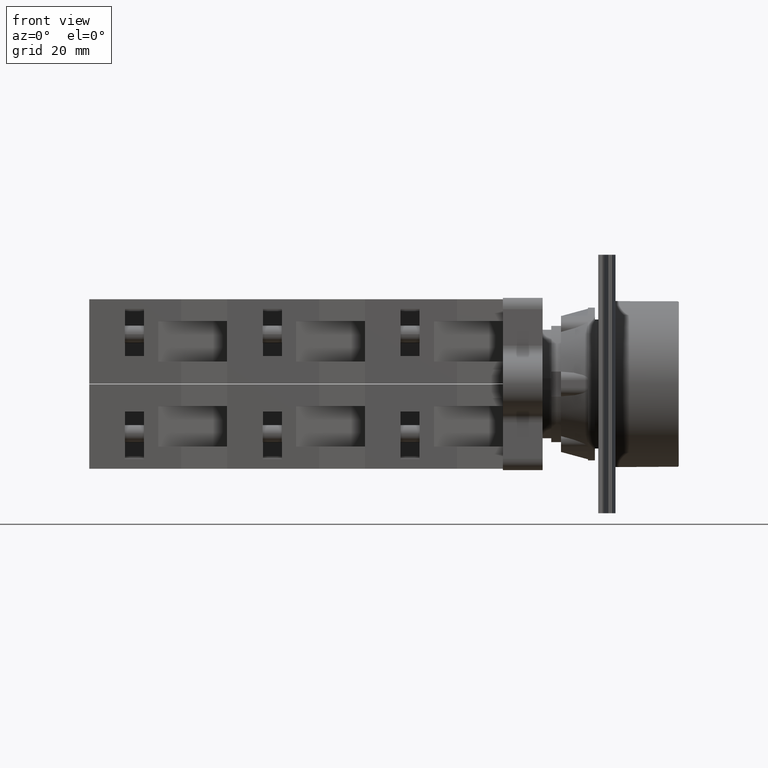
[diagram: clean part render]
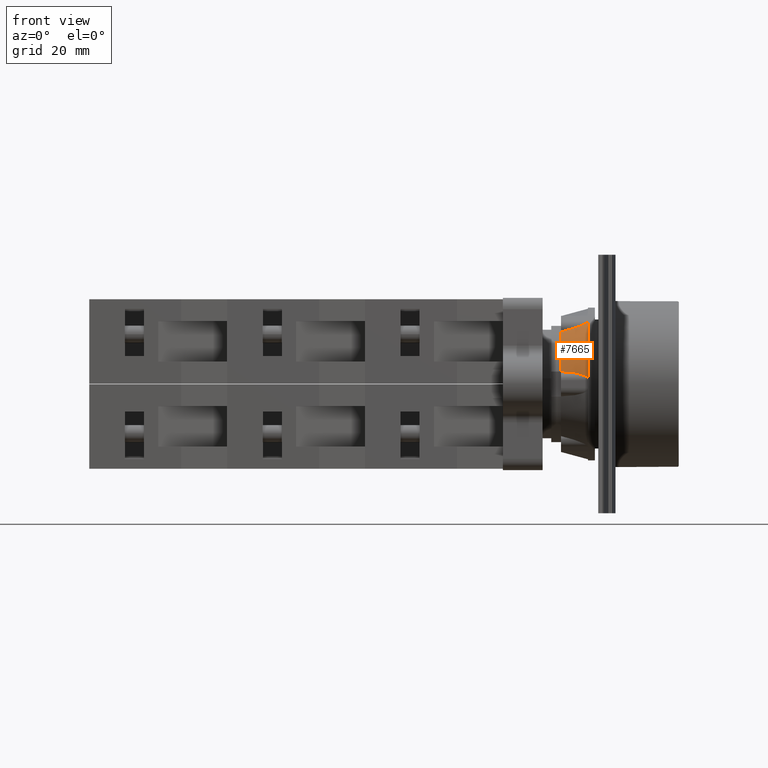
[diagram: same view with one face highlighted and labeled with its STEP entity id]
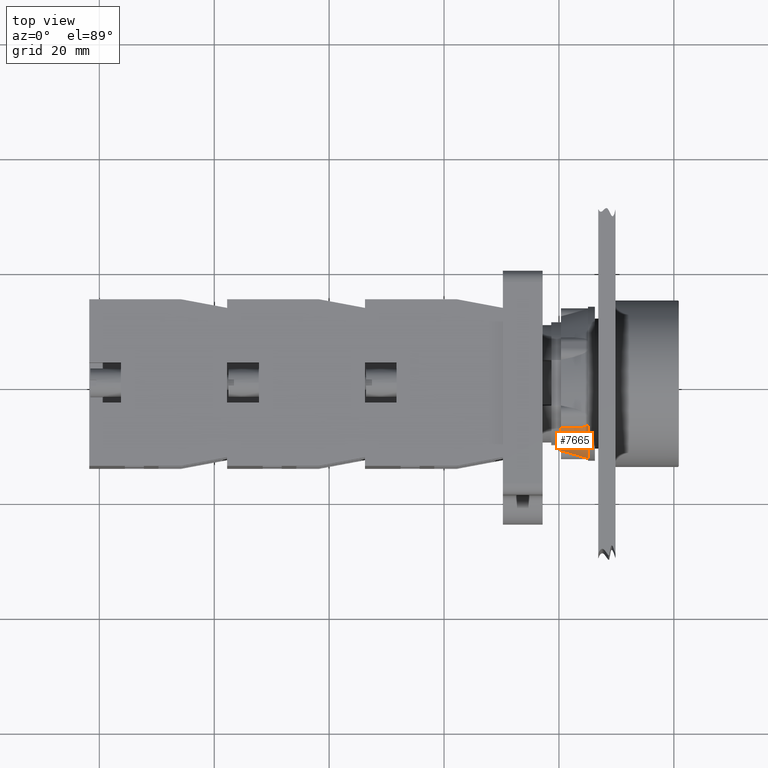
[diagram: same view with one face highlighted and labeled with its STEP entity id]
A machine part, front view. The second image highlights one B-rep face of the part: STEP entity #7665.
A second angle (top view) of the same face is appended — the face is thin or edge-on in the first view.
In plain terms, the highlighted conical surface has half-angle 14.357 deg.
Its self-contained STEP definition (entity closure, byte-faithful):
#7009=CARTESIAN_POINT('',(-5.624441413677323,4.151785486355079,-10.825933760222373));
#7010=VERTEX_POINT('',#7009);
#7019=CARTESIAN_POINT('',(-0.924441413677322,3.821999110955993,-9.063384223984858));
#7020=VERTEX_POINT('',#7019);
#7028=CARTESIAN_POINT('',(-5.624441413677304,4.151785486355092,-10.825933760222375));
#7029=CARTESIAN_POINT('',(-5.573448501602552,4.086181649596806,-10.765405103551005));
#7030=CARTESIAN_POINT('',(-5.499858718227284,4.032803702213161,-10.705118900650326));
#7031=CARTESIAN_POINT('',(-5.426497655225457,3.991625643807002,-10.652960588482738));
#7032=CARTESIAN_POINT('',(-5.353885066415269,3.950867709002079,-10.601334427144751));
#7033=CARTESIAN_POINT('',(-5.274396952156992,3.917355479284580,-10.552142641988494));
#7034=CARTESIAN_POINT('',(-5.190253476801342,3.888166355455448,-10.504260849396072));
#7035=CARTESIAN_POINT('',(-4.885104151437903,3.782310953039969,-10.330615814590782));
#7036=CARTESIAN_POINT('',(-4.520065672206376,3.731381499813819,-10.173548079575625));
#7037=CARTESIAN_POINT('',(-4.173129532818684,3.702346445381459,-10.038271890885770));
#7038=CARTESIAN_POINT('',(-3.959007105868669,3.684426558647679,-9.954781984409204));
#7039=CARTESIAN_POINT('',(-3.757275896403060,3.675523921820981,-9.881777173969949));
#7040=CARTESIAN_POINT('',(-3.544573123045886,3.671365611261395,-9.808671349461337));
#7041=CARTESIAN_POINT('',(-2.723368144514656,3.655311164580172,-9.526423656596082));
#7042=CARTESIAN_POINT('',(-1.810992263511406,3.718953839836752,-9.273648736820190));
#7043=CARTESIAN_POINT('',(-0.924441413677322,3.821999110955995,-9.063384223984857));
#7044=B_SPLINE_CURVE_WITH_KNOTS('',3,(#7028,#7029,#7030,#7031,#7032,#7033,#7034,#7035,#7036,#7037,#7038,#7039,#7040,#7041,#7042,#7043),.UNSPECIFIED.,.F.,.U.,(4,3,3,3,3,4),(0.680390622135762,0.710017202497330,0.739341514463651,0.845687181497822,0.911321716894347,1.164724182600336),.UNSPECIFIED.);
#7045=EDGE_CURVE('',#7010,#7020,#7044,.T.);
#7095=CARTESIAN_POINT('',(-5.624441413677324,-1.532961572689648,-0.979663025779158));
#7096=VERTEX_POINT('',#7095);
#7104=CARTESIAN_POINT('',(-0.924441413677322,-0.171442086579017,-2.146541172815514));
#7105=VERTEX_POINT('',#7104);
#7106=CARTESIAN_POINT('',(-0.924441413677323,-0.171442086579016,-2.146541172815515));
#7107=CARTESIAN_POINT('',(-1.771683228070780,-0.394700717797439,-2.131353398165724));
#7108=CARTESIAN_POINT('',(-2.642508015099927,-0.633553153501011,-2.065432100229145));
#7109=CARTESIAN_POINT('',(-3.434810393553473,-0.860665938432876,-1.924469040424967));
#7110=CARTESIAN_POINT('',(-3.583648307694653,-0.903330196553659,-1.897988433572362));
#7111=CARTESIAN_POINT('',(-3.729719096947503,-0.945567828981231,-1.868814795358329));
#7112=CARTESIAN_POINT('',(-3.872317070512894,-0.987176754190257,-1.836641738132965));
#7113=CARTESIAN_POINT('',(-4.018377826273079,-1.029796090990385,-1.803687405501461));
#7114=CARTESIAN_POINT('',(-4.169407172229925,-1.074266013153906,-1.765718001898758));
#7115=CARTESIAN_POINT('',(-4.322920163511276,-1.120024585926743,-1.720833048705122));
#7116=CARTESIAN_POINT('',(-4.570134522573469,-1.193713308589344,-1.648551186156012));
#7117=CARTESIAN_POINT('',(-4.820924727797369,-1.269896953560020,-1.559616903047123));
#7118=CARTESIAN_POINT('',(-5.047877207843880,-1.341133928526617,-1.445796791348753));
#7119=CARTESIAN_POINT('',(-5.181444270855364,-1.383058623608870,-1.378810882985580));
#7120=CARTESIAN_POINT('',(-5.307176962552298,-1.423368431590584,-1.303462773989718));
#7121=CARTESIAN_POINT('',(-5.417192105388295,-1.460128673531568,-1.212609629200058));
#7122=CARTESIAN_POINT('',(-5.488457681084750,-1.483941211852502,-1.153756806757964));
#7123=CARTESIAN_POINT('',(-5.559948776567516,-1.508593164126053,-1.081967385656501));
#7124=CARTESIAN_POINT('',(-5.612343651441997,-1.528354830300154,-0.999483645020678));
#7125=CARTESIAN_POINT('',(-5.616499890349676,-1.529922430299775,-0.992940597959248));
#7126=CARTESIAN_POINT('',(-5.620535544533318,-1.531458949390357,-0.986332949957415));
#7127=CARTESIAN_POINT('',(-5.624441413677318,-1.532961572689640,-0.979663025779153));
#7128=B_SPLINE_CURVE_WITH_KNOTS('',3,(#7106,#7107,#7108,#7109,#7110,#7111,#7112,#7113,#7114,#7115,#7116,#7117,#7118,#7119,#7120,#7121,#7122,#7123,#7124,#7125,#7126,#7127),.UNSPECIFIED.,.F.,.U.,(4,3,3,3,3,3,3,4),(0.144484446797569,0.386651227029856,0.432143452503685,0.478740389807798,0.553779198534971,0.597941365397016,0.626548720387395,0.628818007262144),.UNSPECIFIED.);
#7129=EDGE_CURVE('',#7105,#7096,#7128,.T.);
#7491=CARTESIAN_POINT('',(-5.624441413677320,11.533358680345970,0.0));
#7492=DIRECTION('',(1.0,0.0,0.0));
#7493=DIRECTION('',(0.0,1.0,0.0));
#7494=AXIS2_PLACEMENT_3D('',#7491,#7492,#7493);
#7495=CIRCLE('',#7494,13.102994489770934);
#7496=EDGE_CURVE('',#7096,#7010,#7495,.T.);
#7648=CARTESIAN_POINT('',(-3.274441413677319,11.533358680345970,0.0));
#7649=DIRECTION('',(-1.0,0.0,0.0));
#7650=DIRECTION('',(0.0,1.0,0.0));
#7651=AXIS2_PLACEMENT_3D('',#7648,#7649,#7650);
#7652=CONICAL_SURFACE('',#7651,12.501497244885464,14.356985316744316);
#7653=ORIENTED_EDGE('',*,*,#7045,.T.);
#7654=CARTESIAN_POINT('',(-0.924441413677319,11.533358680345970,0.0));
#7655=DIRECTION('',(1.0,0.0,0.0));
#7656=DIRECTION('',(0.0,1.0,0.0));
#7657=AXIS2_PLACEMENT_3D('',#7654,#7655,#7656);
#7658=CIRCLE('',#7657,11.899999999999999);
#7659=EDGE_CURVE('',#7105,#7020,#7658,.T.);
#7660=ORIENTED_EDGE('',*,*,#7659,.F.);
#7661=ORIENTED_EDGE('',*,*,#7129,.T.);
#7662=ORIENTED_EDGE('',*,*,#7496,.T.);
#7663=EDGE_LOOP('',(#7653,#7660,#7661,#7662));
#7664=FACE_OUTER_BOUND('',#7663,.T.);
#7665=ADVANCED_FACE('',(#7664),#7652,.T.);